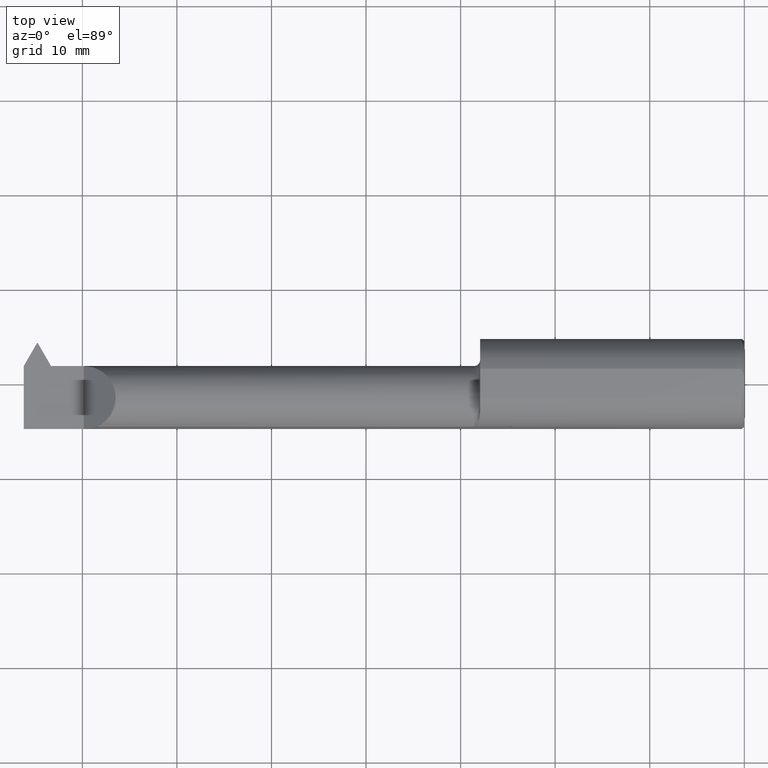
[diagram: clean part render]
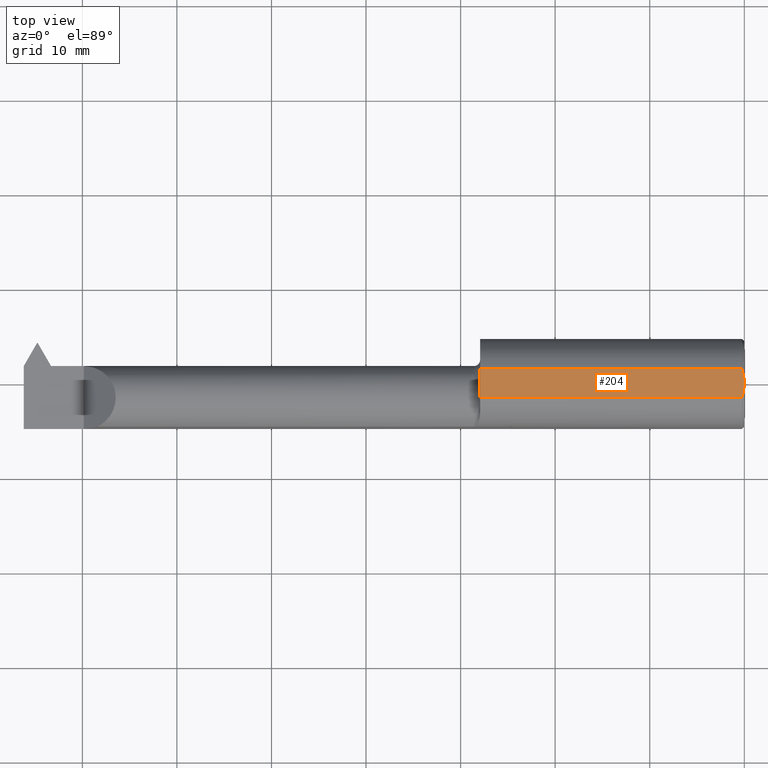
[diagram: same view with one face highlighted and labeled with its STEP entity id]
A machine part, top view. The second image highlights one B-rep face of the part: STEP entity #204.
In plain terms, the highlighted planar face has unit normal (-0, 0, -1).
Its self-contained STEP definition (entity closure, byte-faithful):
#37 = ORIENTED_EDGE ( 'NONE', *, *, #142, .T. ) ;
#53 = CARTESIAN_POINT ( 'NONE',  ( -0.009999999999999620304, -0.06039039658753660861, 0.1773500000000000354 ) ) ;
#66 = CARTESIAN_POINT ( 'NONE',  ( -0.009999999999999620304, 0.06039039658753714984, 0.1773500000000000354 ) ) ;
#96 = CARTESIAN_POINT ( 'NONE',  ( -0.0008974174807281616682, -0.02044204845470701595, 0.1773500000000000909 ) ) ;
#136 = VECTOR ( 'NONE', #276, 39.37007874015748143 ) ;
#142 = EDGE_CURVE ( 'NONE', #764, #711, #566, .T. ) ;
#149 = VERTEX_POINT ( 'NONE', #673 ) ;
#204 = ADVANCED_FACE ( 'NONE', ( #873 ), #405, .F. ) ;
#210 = LINE ( 'NONE', #610, #866 ) ;
#273 = AXIS2_PLACEMENT_3D ( 'NONE', #533, #452, #395 ) ;
#274 = ORIENTED_EDGE ( 'NONE', *, *, #287, .T. ) ;
#276 = DIRECTION ( 'NONE',  ( 1.000000000000000000, 1.224646799147352961E-16, -0.000000000000000000 ) ) ;
#279 = VERTEX_POINT ( 'NONE', #552 ) ;
#287 = EDGE_CURVE ( 'NONE', #711, #756, #668, .T. ) ;
#294 = ORIENTED_EDGE ( 'NONE', *, *, #326, .T. ) ;
#326 = EDGE_CURVE ( 'NONE', #756, #149, #210, .T. ) ;
#331 = EDGE_CURVE ( 'NONE', #279, #764, #689, .T. ) ;
#384 = VECTOR ( 'NONE', #643, 39.37007874015748143 ) ;
#395 = DIRECTION ( 'NONE',  ( 0.000000000000000000, 1.000000000000000000, 1.608104540654732770E-16 ) ) ;
#405 = PLANE ( 'NONE',  #273 ) ;
#408 = CARTESIAN_POINT ( 'NONE',  ( -3.000000000000000444, -0.06039039658753697637, 0.1773500000000000354 ) ) ;
#451 = EDGE_CURVE ( 'NONE', #279, #149, #634, .T. ) ;
#452 = DIRECTION ( 'NONE',  ( -2.498191301712524670E-33, 1.608104540654732770E-16, -1.000000000000000000 ) ) ;
#464 = EDGE_LOOP ( 'NONE', ( #731, #874, #37, #274, #294 ) ) ;
#472 = DIRECTION ( 'NONE',  ( -1.000000000000000000, -1.224646799147352961E-16, 0.000000000000000000 ) ) ;
#478 = CARTESIAN_POINT ( 'NONE',  ( -4.018563988022489946E-33, 2.586779880155948158E-16, 0.1773500000000000909 ) ) ;
#507 = CARTESIAN_POINT ( 'NONE',  ( 5.173904006555303358E-16, -0.01026980879711908781, 0.1773500000000000909 ) ) ;
#513 = CARTESIAN_POINT ( 'NONE',  ( -0.006863038267948253987, -0.05065855487579219718, 0.1773500000000001187 ) ) ;
#515 = CARTESIAN_POINT ( 'NONE',  ( -4.018563988022489946E-33, 2.586779880155948158E-16, 0.1773500000000000909 ) ) ;
#533 = CARTESIAN_POINT ( 'NONE',  ( -3.000000000000000444, 0.2123500000000002053, 0.1773500000000001187 ) ) ;
#540 = CARTESIAN_POINT ( 'NONE',  ( -0.0009167640511159435429, 0.02059964124962118323, 0.1773500000000001187 ) ) ;
#545 = CARTESIAN_POINT ( 'NONE',  ( -0.004345633232307873246, 0.04072602595449489882, 0.1773500000000001187 ) ) ;
#552 = CARTESIAN_POINT ( 'NONE',  ( -1.100000000000000311, -0.06039039658753674045, 0.1773500000000000354 ) ) ;
#566 = B_SPLINE_CURVE_WITH_KNOTS ( 'NONE', 3,
 ( #772, #513, #847, #96, #507, #781 ),
 .UNSPECIFIED., .F., .F.,
 ( 4, 2, 4 ),
 ( 0.001950265285394799661, 0.002725445821525794825, 0.003500626357656789773 ),
 .UNSPECIFIED. ) ;
#610 = CARTESIAN_POINT ( 'NONE',  ( -3.000000000000000444, 0.06039039658753678902, 0.1773500000000000354 ) ) ;
#634 = LINE ( 'NONE', #780, #384 ) ;
#643 = DIRECTION ( 'NONE',  ( -9.422009876951564852E-18, 1.000000000000000000, 1.608104540654732770E-16 ) ) ;
#668 = B_SPLINE_CURVE_WITH_KNOTS ( 'NONE', 3,
 ( #478, #816, #540, #545, #762, #825 ),
 .UNSPECIFIED., .F., .F.,
 ( 4, 2, 4 ),
 ( 0.003500626357656789773, 0.004276870921897977552, 0.005053115486139164898 ),
 .UNSPECIFIED. ) ;
#673 = CARTESIAN_POINT ( 'NONE',  ( -1.100000000000000311, 0.06039039658753714290, 0.1773500000000000909 ) ) ;
#689 = LINE ( 'NONE', #408, #136 ) ;
#711 = VERTEX_POINT ( 'NONE', #515 ) ;
#731 = ORIENTED_EDGE ( 'NONE', *, *, #451, .F. ) ;
#756 = VERTEX_POINT ( 'NONE', #66 ) ;
#762 = CARTESIAN_POINT ( 'NONE',  ( -0.006852151730285845586, 0.05062478141268319382, 0.1773500000000000909 ) ) ;
#764 = VERTEX_POINT ( 'NONE', #53 ) ;
#772 = CARTESIAN_POINT ( 'NONE',  ( -0.009999999999999620304, -0.06039039658753660861, 0.1773500000000000354 ) ) ;
#780 = CARTESIAN_POINT ( 'NONE',  ( -1.100000000000000311, 0.2123500000000002330, 0.1773500000000001187 ) ) ;
#781 = CARTESIAN_POINT ( 'NONE',  ( -4.018563988022489946E-33, 2.586779880155948158E-16, 0.1773500000000000909 ) ) ;
#816 = CARTESIAN_POINT ( 'NONE',  ( 5.243156175340007021E-16, 0.01028390533945653697, 0.1773500000000001187 ) ) ;
#825 = CARTESIAN_POINT ( 'NONE',  ( -0.009999999999999620304, 0.06039039658753714984, 0.1773500000000000354 ) ) ;
#847 = CARTESIAN_POINT ( 'NONE',  ( -0.004318418993203173434, -0.04060972747957806994, 0.1773500000000000909 ) ) ;
#866 = VECTOR ( 'NONE', #472, 39.37007874015748143 ) ;
#873 = FACE_OUTER_BOUND ( 'NONE', #464, .T. ) ;
#874 = ORIENTED_EDGE ( 'NONE', *, *, #331, .T. ) ;